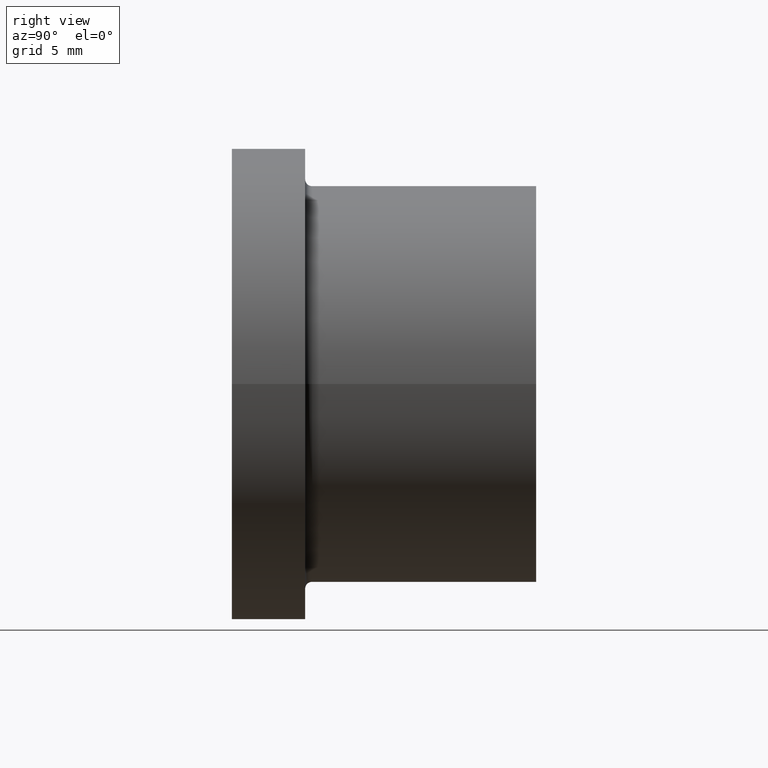
[diagram: clean part render]
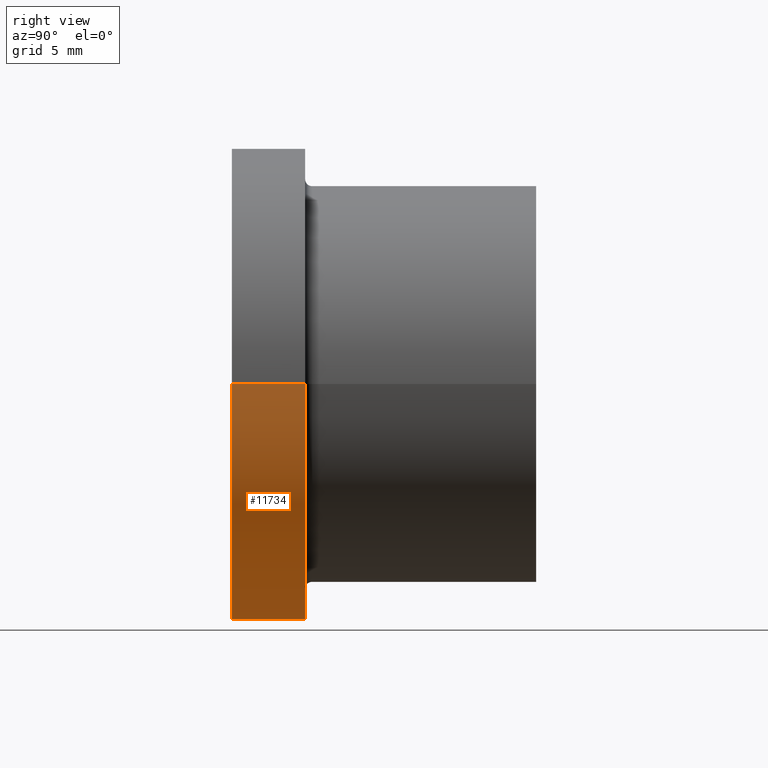
[diagram: same view with one face highlighted and labeled with its STEP entity id]
A machine part, right view. The second image highlights one B-rep face of the part: STEP entity #11734.
In plain terms, the highlighted cylindrical surface (partial cylindrical patch) has radius 17 mm, axis along (-0, 1, -0).
Its self-contained STEP definition (entity closure, byte-faithful):
#432 = EDGE_LOOP ( 'NONE', ( #606, #871, #7109, #5046 ) ) ;
#463 = DIRECTION ( 'NONE',  ( -1.000000000000000000, 0.0000000000000000000, 0.0000000000000000000 ) ) ;
#606 = ORIENTED_EDGE ( 'NONE', *, *, #2152, .F. ) ;
#701 = DIRECTION ( 'NONE',  ( -1.391644089940172800E-017, 1.000000000000000000, -0.0000000000000000000 ) ) ;
#806 = CARTESIAN_POINT ( 'NONE',  ( -17.00000000000000000, 22.00000000000000000, 0.0000000000000000000 ) ) ;
#871 = ORIENTED_EDGE ( 'NONE', *, *, #1618, .T. ) ;
#923 = AXIS2_PLACEMENT_3D ( 'NONE', #10086, #4338, #463 ) ;
#1131 = DIRECTION ( 'NONE',  ( -1.391644089940172800E-017, 1.000000000000000000, -0.0000000000000000000 ) ) ;
#1618 = EDGE_CURVE ( 'NONE', #3721, #4436, #4100, .T. ) ;
#1670 = CARTESIAN_POINT ( 'NONE',  ( 17.00000000000000000, 5.299999999999998900, 2.081899558550500300E-015 ) ) ;
#1931 = CARTESIAN_POINT ( 'NONE',  ( -7.375713676682917400E-017, 5.299999999999998900, 0.0000000000000000000 ) ) ;
#2152 = EDGE_CURVE ( 'NONE', #3721, #7563, #6489, .T. ) ;
#2344 = FACE_OUTER_BOUND ( 'NONE', #432, .T. ) ;
#2772 = VECTOR ( 'NONE', #10448, 1000.000000000000000 ) ;
#3706 = CARTESIAN_POINT ( 'NONE',  ( 17.00000000000000000, 2.365794952898294000E-016, 2.081899558550500300E-015 ) ) ;
#3721 = VERTEX_POINT ( 'NONE', #3706 ) ;
#3768 = CARTESIAN_POINT ( 'NONE',  ( 17.00000000000000000, 22.00000000000000000, 2.081899558550500300E-015 ) ) ;
#4100 = CIRCLE ( 'NONE', #8802, 17.00000000000000000 ) ;
#4338 = DIRECTION ( 'NONE',  ( -1.391644089940172800E-017, 1.000000000000000000, -0.0000000000000000000 ) ) ;
#4384 = DIRECTION ( 'NONE',  ( -1.000000000000000000, -1.391644089940172800E-017, 0.0000000000000000000 ) ) ;
#4436 = VERTEX_POINT ( 'NONE', #11059 ) ;
#4769 = DIRECTION ( 'NONE',  ( -1.000000000000000000, 0.0000000000000000000, 0.0000000000000000000 ) ) ;
#5046 = ORIENTED_EDGE ( 'NONE', *, *, #8079, .F. ) ;
#6165 = VECTOR ( 'NONE', #6480, 1000.000000000000000 ) ;
#6480 = DIRECTION ( 'NONE',  ( -1.391644089940172800E-017, 1.000000000000000000, -0.0000000000000000000 ) ) ;
#6489 = LINE ( 'NONE', #3768, #2772 ) ;
#7109 = ORIENTED_EDGE ( 'NONE', *, *, #8429, .T. ) ;
#7563 = VERTEX_POINT ( 'NONE', #1670 ) ;
#8079 = EDGE_CURVE ( 'NONE', #7563, #10215, #10596, .T. ) ;
#8103 = CARTESIAN_POINT ( 'NONE',  ( -17.00000000000000000, 5.299999999999998900, 0.0000000000000000000 ) ) ;
#8372 = CARTESIAN_POINT ( 'NONE',  ( 0.0000000000000000000, 0.0000000000000000000, 0.0000000000000000000 ) ) ;
#8429 = EDGE_CURVE ( 'NONE', #4436, #10215, #9607, .T. ) ;
#8802 = AXIS2_PLACEMENT_3D ( 'NONE', #8372, #701, #4384 ) ;
#9607 = LINE ( 'NONE', #806, #6165 ) ;
#10086 = CARTESIAN_POINT ( 'NONE',  ( -3.061616997868380200E-016, 22.00000000000000000, 0.0000000000000000000 ) ) ;
#10215 = VERTEX_POINT ( 'NONE', #8103 ) ;
#10448 = DIRECTION ( 'NONE',  ( -1.391644089940172800E-017, 1.000000000000000000, -0.0000000000000000000 ) ) ;
#10596 = CIRCLE ( 'NONE', #11659, 17.00000000000000000 ) ;
#11059 = CARTESIAN_POINT ( 'NONE',  ( -17.00000000000000000, -2.365794952898294000E-016, 0.0000000000000000000 ) ) ;
#11659 = AXIS2_PLACEMENT_3D ( 'NONE', #1931, #1131, #4769 ) ;
#11734 = ADVANCED_FACE ( 'NONE', ( #2344 ), #11872, .T. ) ;
#11872 = CYLINDRICAL_SURFACE ( 'NONE', #923, 17.00000000000000000 ) ;